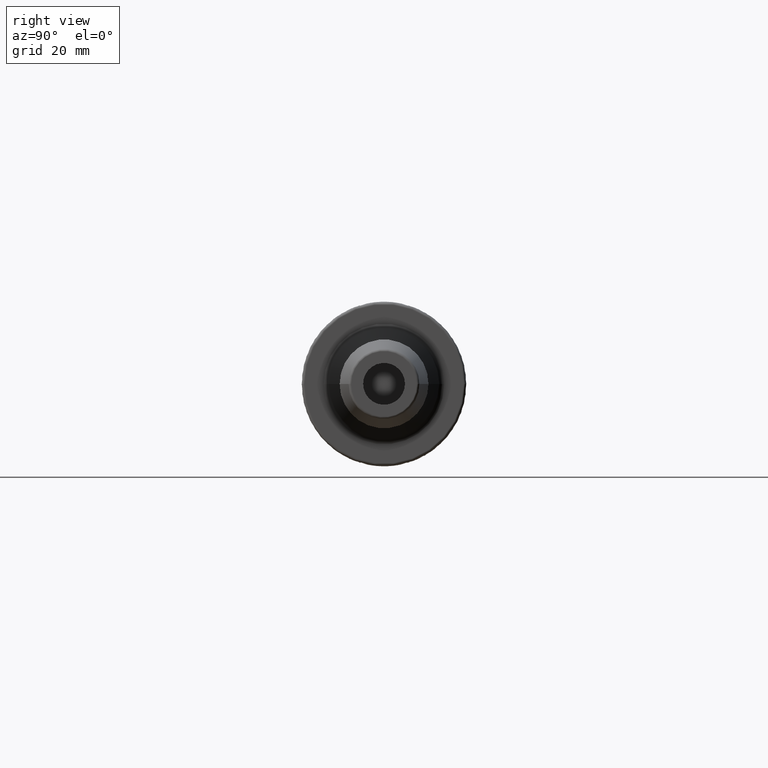
[diagram: clean part render]
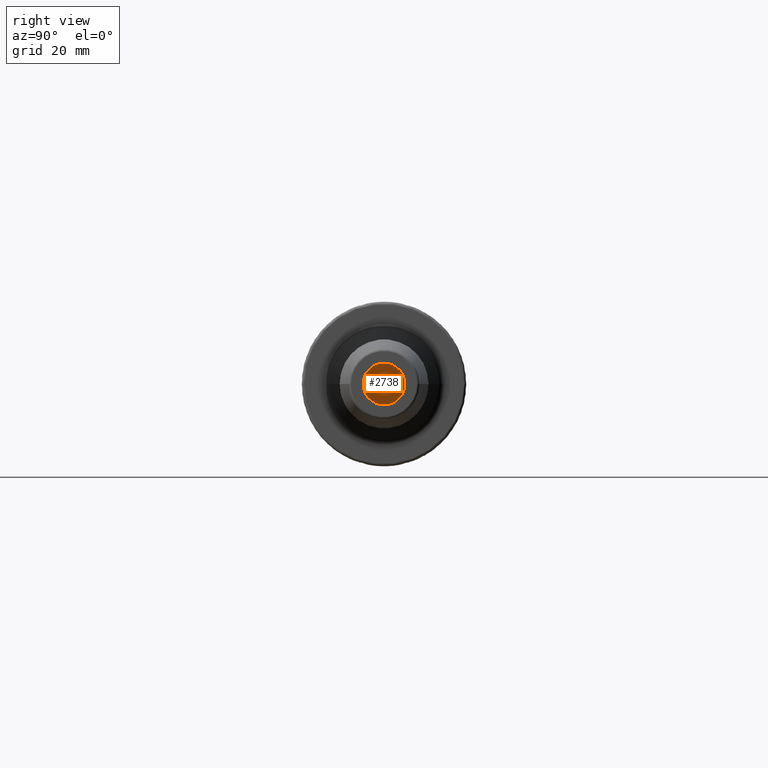
[diagram: same view with one face highlighted and labeled with its STEP entity id]
A machine part, right view. The second image highlights one B-rep face of the part: STEP entity #2738.
In plain terms, the highlighted planar face has unit normal (1, 0, 0).
Its self-contained STEP definition (entity closure, byte-faithful):
#960=CARTESIAN_POINT('',(1.5E2,0.E0,0.E0));
#961=DIRECTION('',(-1.E0,0.E0,0.E0));
#962=DIRECTION('',(0.E0,1.E0,0.E0));
#963=AXIS2_PLACEMENT_3D('',#960,#961,#962);
#965=CARTESIAN_POINT('',(1.5E2,0.E0,0.E0));
#966=DIRECTION('',(1.E0,0.E0,0.E0));
#967=DIRECTION('',(0.E0,1.E0,0.E0));
#968=AXIS2_PLACEMENT_3D('',#965,#966,#967);
#1413=CARTESIAN_POINT('',(1.5E2,8.E0,0.E0));
#1414=CARTESIAN_POINT('',(1.5E2,-8.E0,0.E0));
#1415=VERTEX_POINT('',#1413);
#1416=VERTEX_POINT('',#1414);
#2729=CARTESIAN_POINT('',(1.5E2,0.E0,0.E0));
#2730=DIRECTION('',(1.E0,0.E0,0.E0));
#2731=DIRECTION('',(0.E0,-1.E0,0.E0));
#2732=AXIS2_PLACEMENT_3D('',#2729,#2730,#2731);
#2733=PLANE('',#2732);
#2734=ORIENTED_EDGE('',*,*,#2724,.T.);
#2735=ORIENTED_EDGE('',*,*,#2708,.F.);
#2736=EDGE_LOOP('',(#2734,#2735));
#2737=FACE_OUTER_BOUND('',#2736,.F.);
#2738=ADVANCED_FACE('',(#2737),#2733,.T.);
#964=CIRCLE('',#963,8.E0);
#969=CIRCLE('',#968,8.E0);
#2708=EDGE_CURVE('',#1415,#1416,#969,.T.);
#2724=EDGE_CURVE('',#1415,#1416,#964,.T.);